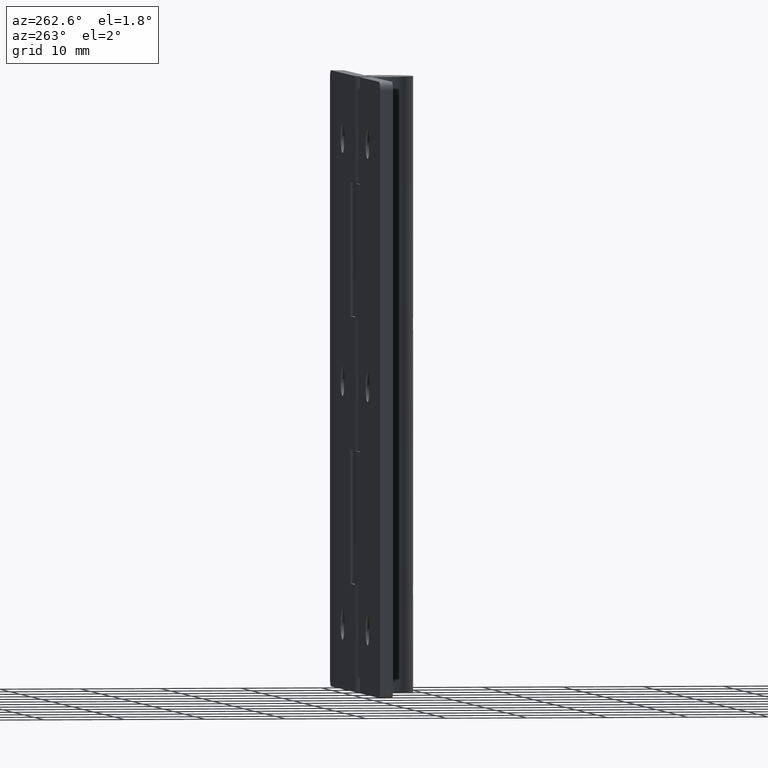
[diagram: clean part render]
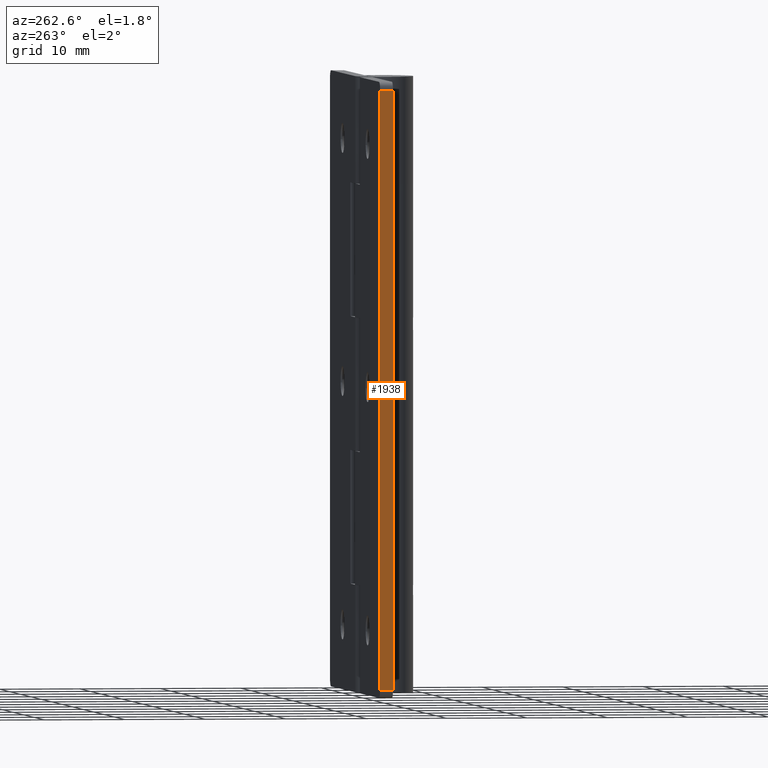
[diagram: same view with one face highlighted and labeled with its STEP entity id]
A machine part, auxiliary view. The second image highlights one B-rep face of the part: STEP entity #1938.
In plain terms, the highlighted face is a freeform B-spline surface patch.
Its self-contained STEP definition (entity closure, byte-faithful):
#1293=CARTESIAN_POINT('',(-24.0,3.599998000000000,75.000008000000008));
#1294=VERTEX_POINT('',#1293);
#1310=CARTESIAN_POINT('',(-24.0,2.0,75.000008000000008));
#1311=VERTEX_POINT('',#1310);
#1312=CARTESIAN_POINT('',(-24.0,2.0,75.000008000000008));
#1313=CARTESIAN_POINT('',(-24.0,3.599998000000000,75.000008000000008));
#1314=QUASI_UNIFORM_CURVE('',1,(#1312,#1313),.UNSPECIFIED.,.F.,.U.);
#1315=EDGE_CURVE('',#1311,#1294,#1314,.T.);
#1356=CARTESIAN_POINT('',(-24.0,3.599998000000000,1.0));
#1357=VERTEX_POINT('',#1356);
#1378=CARTESIAN_POINT('',(-24.0,2.0,1.0));
#1379=VERTEX_POINT('',#1378);
#1393=CARTESIAN_POINT('',(-24.0,3.599998000000000,1.0));
#1394=CARTESIAN_POINT('',(-24.0,2.0,1.0));
#1395=QUASI_UNIFORM_CURVE('',1,(#1393,#1394),.UNSPECIFIED.,.F.,.U.);
#1396=EDGE_CURVE('',#1357,#1379,#1395,.T.);
#1919=CARTESIAN_POINT('',(-24.0,1.920080103001107,78.696308256173637));
#1920=CARTESIAN_POINT('',(-24.0,1.920080103001107,-2.696302241008512));
#1921=CARTESIAN_POINT('',(-24.0,3.679917939914185,78.696308256173637));
#1922=CARTESIAN_POINT('',(-24.0,3.679917939914185,-2.696302241008512));
#1923=B_SPLINE_SURFACE_WITH_KNOTS('',1,1,((#1919,#1921),(#1920,#1922)),.UNSPECIFIED.,.F.,.F.,.U.,(2,2),(2,2),(0.0,81.392610497182147),(0.041708334948495,0.958291687403247),.UNSPECIFIED.);
#1924=CARTESIAN_POINT('',(-24.0,3.599998000000000,75.000008000000008));
#1925=CARTESIAN_POINT('',(-24.0,3.599998000000000,1.0));
#1926=QUASI_UNIFORM_CURVE('',1,(#1924,#1925),.UNSPECIFIED.,.F.,.U.);
#1927=EDGE_CURVE('',#1294,#1357,#1926,.T.);
#1928=ORIENTED_EDGE('',*,*,#1927,.T.);
#1929=ORIENTED_EDGE('',*,*,#1396,.T.);
#1930=CARTESIAN_POINT('',(-24.0,2.0,75.000008000000008));
#1931=CARTESIAN_POINT('',(-24.0,2.0,1.0));
#1932=QUASI_UNIFORM_CURVE('',1,(#1930,#1931),.UNSPECIFIED.,.F.,.U.);
#1933=EDGE_CURVE('',#1311,#1379,#1932,.T.);
#1934=ORIENTED_EDGE('',*,*,#1933,.F.);
#1935=ORIENTED_EDGE('',*,*,#1315,.T.);
#1936=EDGE_LOOP('',(#1928,#1929,#1934,#1935));
#1937=FACE_OUTER_BOUND('',#1936,.T.);
#1938=ADVANCED_FACE('',(#1937),#1923,.F.);